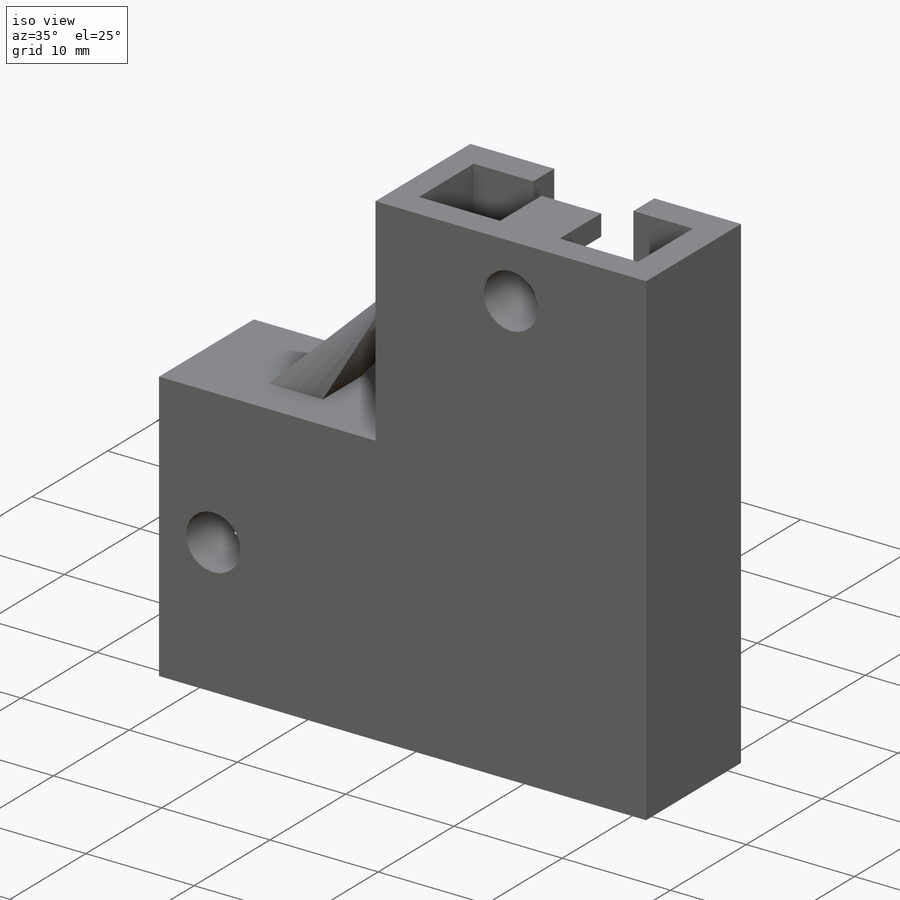
[diagram: iso view]
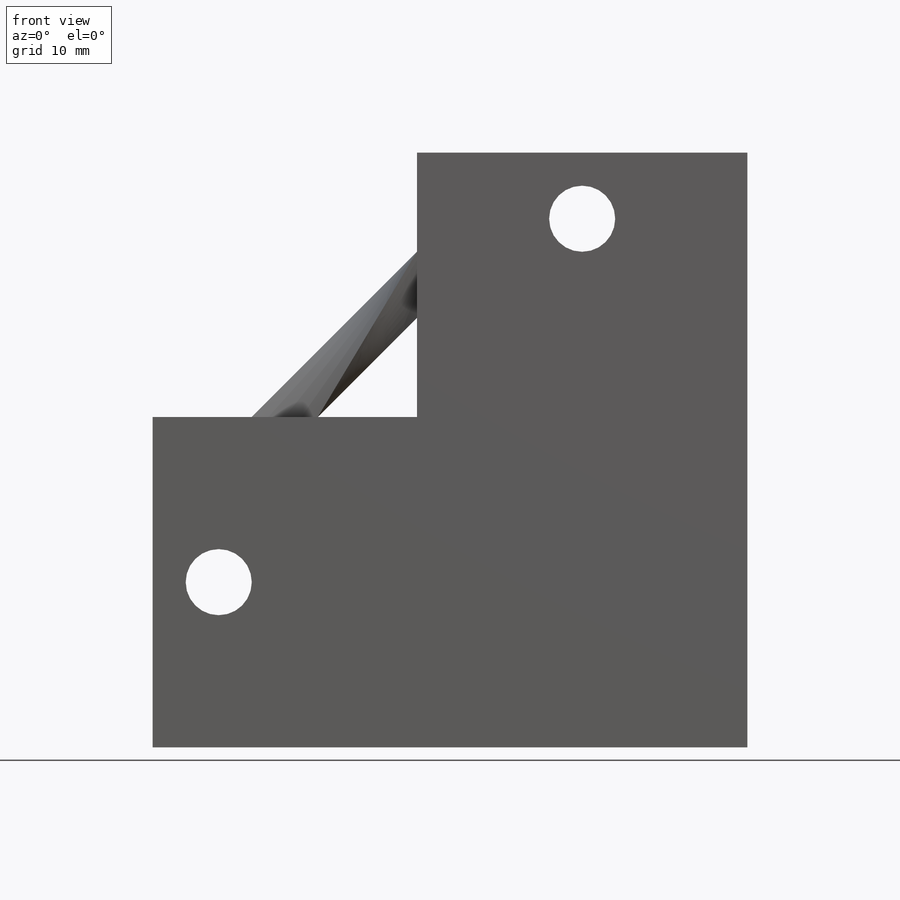
[diagram: front view]
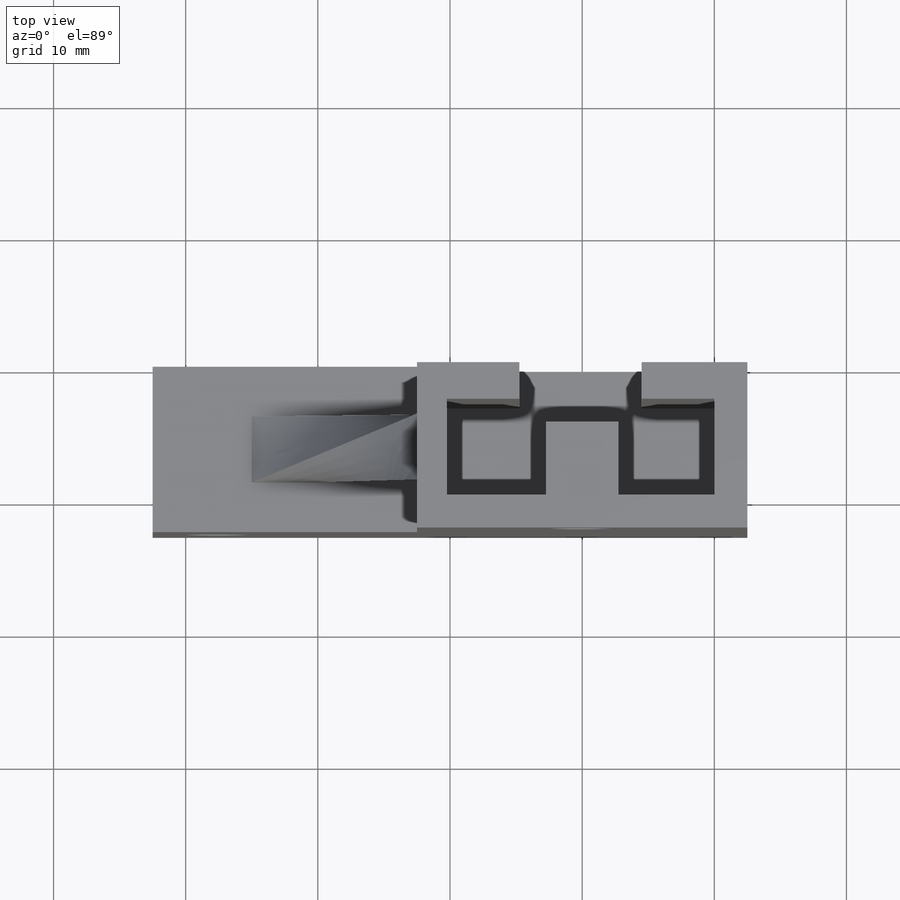
[diagram: top view]
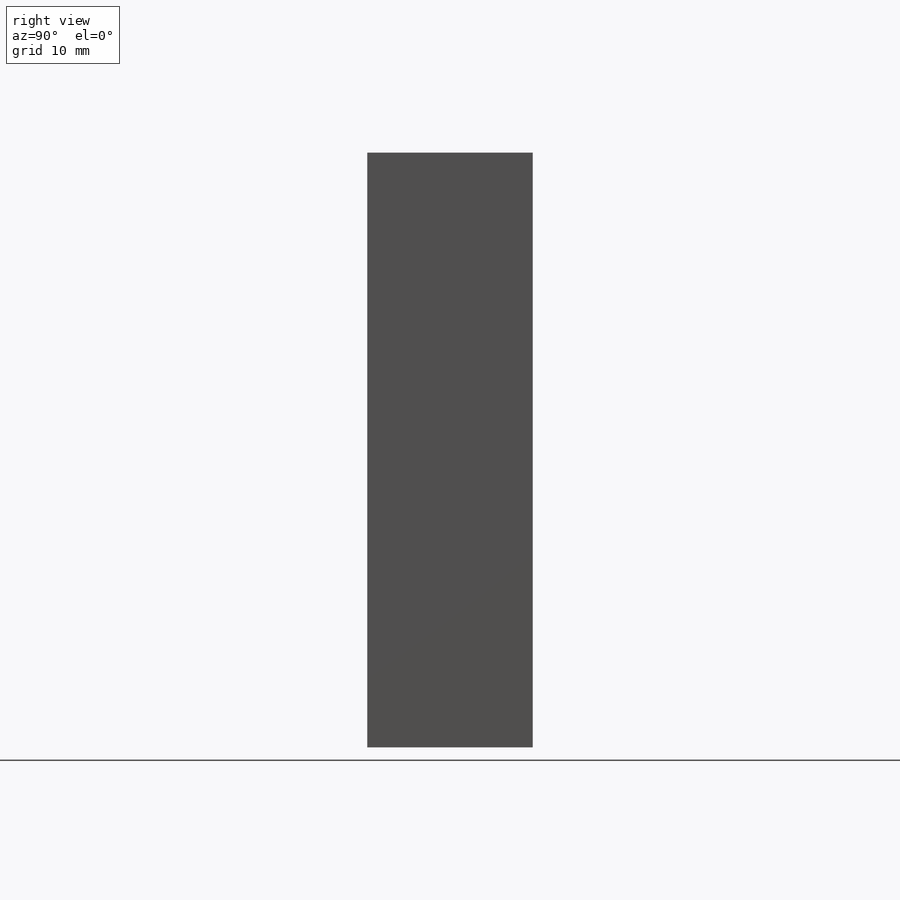
[diagram: right view]
SOLIDWORKS PART (.sldprt)
format: sldprt  version: not decoded by parser v0  size: 807,424 bytes
history: native  units: mm
features: sketch x11, cut_extrude x6, extrude x2, material x1, mirror x1, delete_body x1 (+13 scaffold rows collapsed)
feature tree (35):
  scaffold x13  (default folders/planes/origin — collapsed)
  material  "Material <not specified>"
  sketch  "Sketch1"  dims[D1=25.0mm D2=25.0mm]
  extrude  "Boss-Extrude1"  Depth=45mm
  sketch  "Sketch3"  dims[c1.D1=5.5mm c1.D2=5.5mm c1.D3=5.5mm c1.D4=5.5mm c1.D5=2.75mm c1.D6=5.5mm c1.D7=2.75mm c1.D8=5.5mm c1.D9=2.75mm c1.D10=5.5mm c1.D11=2.25mm c1.D12=2.25mm c1.D13=5.5mm c1.D14=20.5mm c2.D2=~3.552164mm c2.D1=20.25mm c3.D2=20.25mm c3.D3=5.5mm c3.D4=5.5mm c3.D5=2.5mm c3.D6=5.5mm c3.D7=5.5mm c3.D8=5.5mm c3.D9=8.0mm c3.D10=7.75mm c3.D11=15.25mm c3.D12=15.25mm c3.D13=15.25mm c3.D14=5.5mm c4.D8=8.0mm c4.D9=15.25mm c4.D14=5.5mm c4.D15=2.5mm c4.D16=9.75mm]
  sketch  "Sketch4"  dims[D1=25.0mm D2=5.0mm]
  extrude  "Boss-Extrude2"  Depth=20mm
  sketch  "Sketch5"  dims[D1=20.25mm D2=5.5mm D3=5.5mm D4=5.5mm D5=5.5mm D6=5.5mm D7=5.5mm D8=5.5mm D9=5.5mm D10=2.75mm D11=2.75mm D12=2.75mm]
  cut_extrude  "Cut-Extrude2"  Depth=42.5mm
  cut_extrude  "Cut-Extrude3"  Depth=21.5mm
  sketch  "Sketch6"  dims[c1.D1=~2.190255mm c2.D1=4.5mm c2.D2=4.5mm c2.D3=10.0mm c2.D4=10.0mm]
  cut_extrude  "Cut-Extrude4"  Depth=10mm
  sketch  "Sketch8"
  sketch  "Sketch10"  dims[D1=5.0mm D2=5.0mm D3=5.0mm D4=5.0mm]
  cut_extrude  "Cut-Extrude7"  Depth=10mm
  sketch  "Sketch11"  dims[D1=7.85mm D2=7.85mm]
  cut_extrude  "Cut-Extrude8"  Depth=2.6mm
  cut_extrude  "Cut-Extrude9"  Depth=50mm
  sketch  "Sketch15"  dims[D1=5.0mm D2=5.0mm]
  sketch  "Sketch16"  dims[D1=5.0mm D2=5.0mm]
  sketch  "Sketch17"  dims[D1=~8.522462mm]
  mirror  "Mirror1"
  delete_body  "Body-Delete1"
decode coverage: 18 of 21 modeling features carry decoded parameters
note: ~ marks probable driven/reference dimensions
note: suppression state not decoded; provenance and decode notes live in map.json
